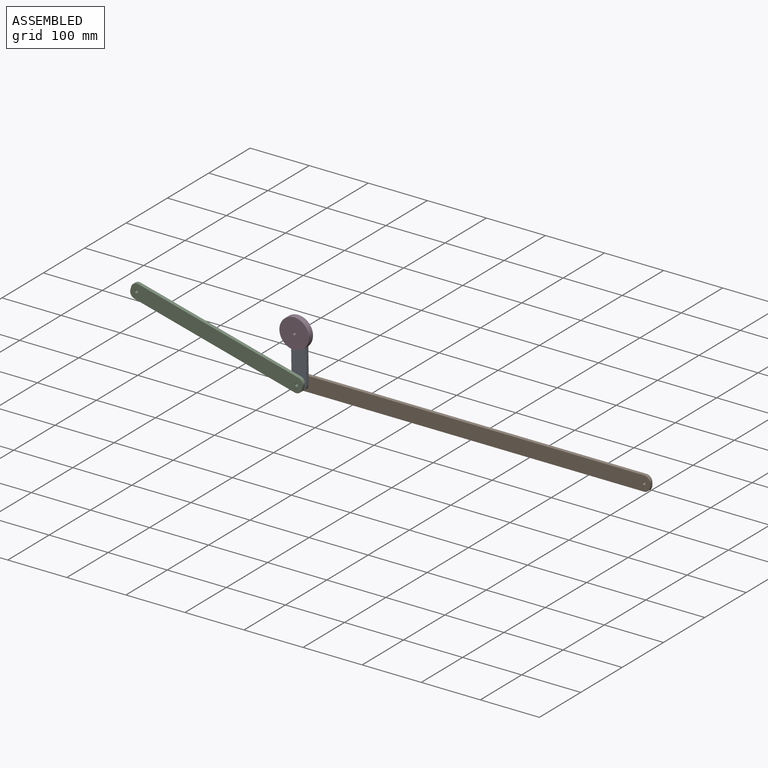
[diagram: assembled view]
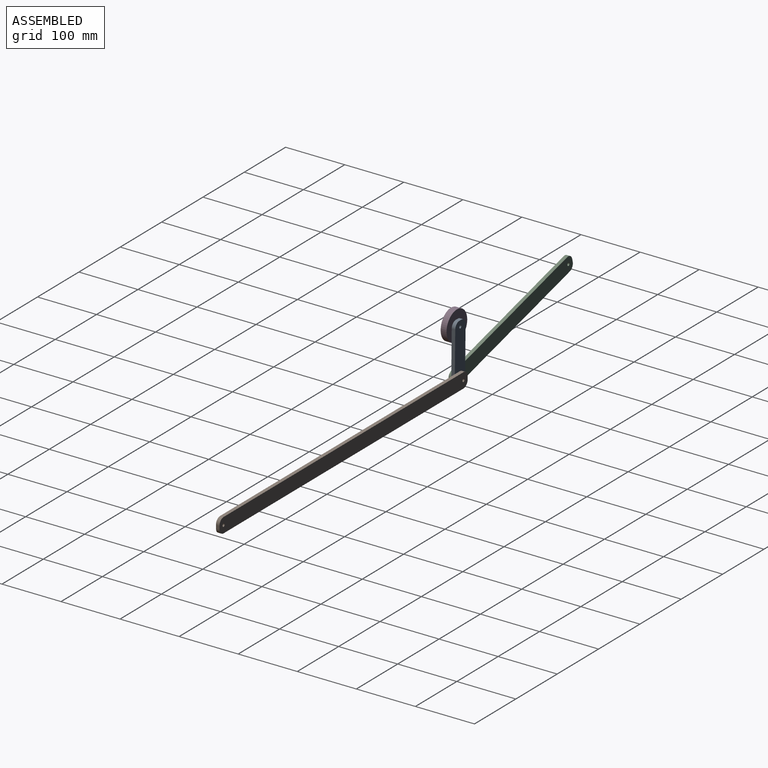
[diagram: assembled view, second angle]
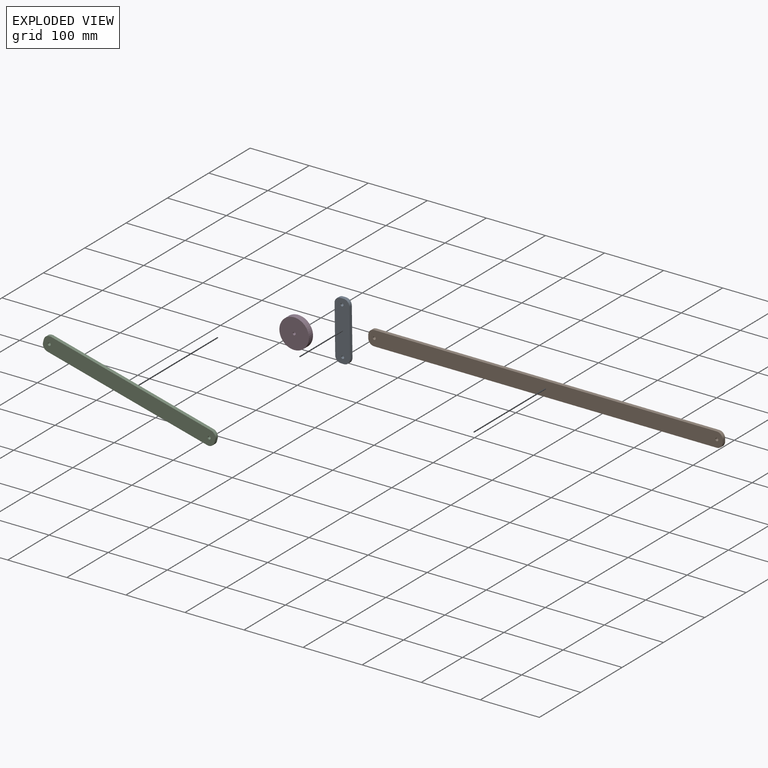
[diagram: exploded view]
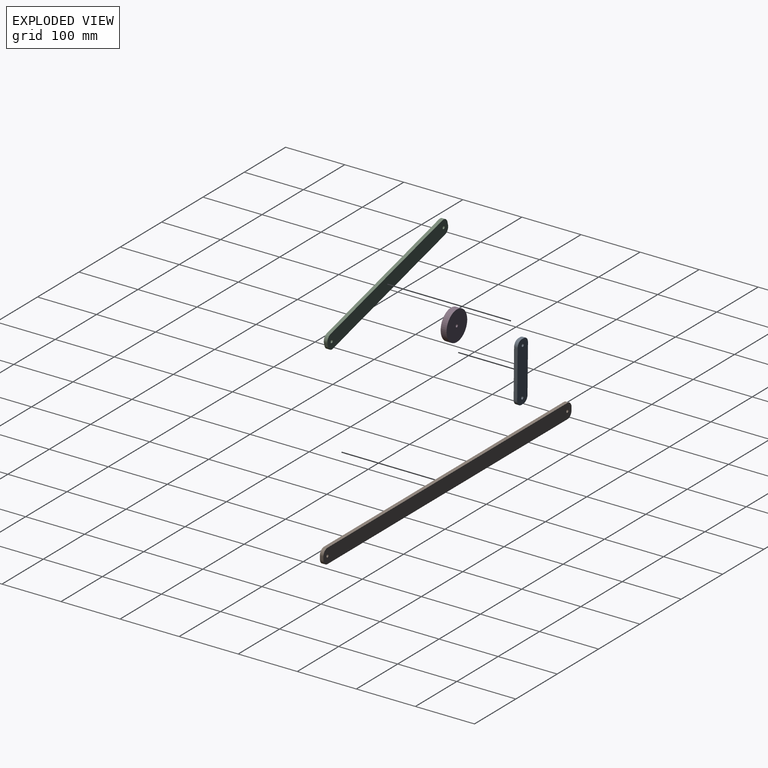
[diagram: exploded view, second angle]
ASSEMBLY  parts=4 mates=6
PART A: 12 faces, bbox 100x6x25 mm
  f0: plane 6x5mm, normal (1,0,0), area 30mm2, adj f4,f5,f6,f9
  f1: plane 80x6mm, normal (0,0,1), area 480mm2, adj f4,f5,f6,f7
  f2: plane 6x5mm, normal (-1,0,0), area 30mm2, adj f4,f5,f7,f8
  f3: plane 80x6mm, normal (0,0,-1), area 480mm2, adj f4,f5,f8,f9
  f4: plane 100x25mm, normal (0,-1,0), area 2374.9mm2, adj f0,f1,f2,f3,f6,f7,f8,f9
  f5: plane 100x25mm, normal (0,1,0), area 2374.9mm2, adj f0,f1,f2,f3,f6,f7,f8,f9
  f6: cylinder r=10mm len=10mm, axis (0,-1,0), area 94.2mm2, adj f0,f1,f4,f5
  f7: cylinder r=10mm len=10mm, axis (0,1,0), area 94.2mm2, adj f1,f2,f4,f5
  f8: cylinder r=10mm len=10mm, axis (0,-1,0), area 94.2mm2, adj f2,f3,f4,f5
  f9: cylinder r=10mm len=10mm, axis (0,1,0), area 94.2mm2, adj f0,f3,f4,f5
  f10: cylinder r=2.5mm len=6mm, axis (0,-1,0), area 94.2mm2, adj f4,f5
  f11: cylinder r=2.5mm len=6mm, axis (0,-1,0), area 94.2mm2, adj f4,f5
PART B: 12 faces, bbox 600x6x25 mm
  f0: plane 6x5mm, normal (1,0,0), area 30mm2, adj f4,f5,f6,f9
  f1: plane 580x6mm, normal (0,0,1), area 3480mm2, adj f4,f5,f6,f7
  f2: plane 6x5mm, normal (-1,0,0), area 30mm2, adj f4,f5,f7,f8
  f3: plane 580x6mm, normal (0,0,-1), area 3480mm2, adj f4,f5,f8,f9
  f4: plane 600x25mm, normal (0,-1,0), area 14874.9mm2, adj f0,f1,f2,f3,f6,f7,f8,f9
  f5: plane 600x25mm, normal (0,1,0), area 14874.9mm2, adj f0,f1,f2,f3,f6,f7,f8,f9
  f6: cylinder r=10mm len=10mm, axis (0,-1,0), area 94.2mm2, adj f0,f1,f4,f5
  f7: cylinder r=10mm len=10mm, axis (0,1,0), area 94.2mm2, adj f1,f2,f4,f5
  f8: cylinder r=10mm len=10mm, axis (0,-1,0), area 94.2mm2, adj f2,f3,f4,f5
  f9: cylinder r=10mm len=10mm, axis (0,1,0), area 94.2mm2, adj f0,f3,f4,f5
  f10: cylinder r=2.5mm len=6mm, axis (0,-1,0), area 94.2mm2, adj f4,f5
  f11: cylinder r=2.5mm len=6mm, axis (0,-1,0), area 94.2mm2, adj f4,f5
PART C: 12 faces, bbox 300x6x25 mm
  f0: plane 6x5mm, normal (1,0,0), area 30mm2, adj f4,f5,f6,f9
  f1: plane 280x6mm, normal (0,0,1), area 1680mm2, adj f4,f5,f6,f7
  f2: plane 6x5mm, normal (-1,0,0), area 30mm2, adj f4,f5,f7,f8
  f3: plane 280x6mm, normal (0,0,-1), area 1680mm2, adj f4,f5,f8,f9
  f4: plane 300x25mm, normal (0,-1,0), area 7374.9mm2, adj f0,f1,f2,f3,f6,f7,f8,f9
  f5: plane 300x25mm, normal (0,1,0), area 7374.9mm2, adj f0,f1,f2,f3,f6,f7,f8,f9
  f6: cylinder r=10mm len=10mm, axis (0,-1,0), area 94.2mm2, adj f0,f1,f4,f5
  f7: cylinder r=10mm len=10mm, axis (0,1,0), area 94.2mm2, adj f1,f2,f4,f5
  f8: cylinder r=10mm len=10mm, axis (0,-1,0), area 94.2mm2, adj f2,f3,f4,f5
  f9: cylinder r=10mm len=10mm, axis (0,1,0), area 94.2mm2, adj f0,f3,f4,f5
  f10: cylinder r=2.5mm len=6mm, axis (0,-1,0), area 94.2mm2, adj f4,f5
  f11: cylinder r=2.5mm len=6mm, axis (0,-1,0), area 94.2mm2, adj f4,f5
PART D: 4 faces, bbox 50x10x50 mm
  f0: cylinder r=2.5mm len=10mm, axis (0,-1,0), area 157.1mm2, adj f2,f3
  f1: cylinder r=25mm len=50mm, axis (0,-1,0), area 1570.8mm2, adj f2,f3
  f2: plane 50x50mm, normal (0,1,0), area 1943.9mm2, adj f0,f1
  f3: plane 50x50mm, normal (0,-1,0), area 1943.9mm2, adj f0,f1
PLACE A rot(axis=(0,-1,0),90.8deg) t=(-70.14,-33.4,37.06)mm
PLACE B rot(axis=(1,0,0),180deg) t=(220.42,-33.4,-2.94)mm fixed
PLACE C rot(axis=(0,1,0),14.7deg) t=(-205.03,-39.4,32.48)mm
PLACE D rot(axis=(0,-1,0),0.8deg) t=(23.44,-49.4,-195.45)mm
MATE planar B.f5 <-> A.f5  axis (0,-1,0) through (220.42,-33.4,-2.94)mm
MATE planar D.f0 <-> A.f4  axis (0,1,0) through (-70.69,-39.4,77.06)mm
MATE cylindrical C.f11 <-> A.f10  axis (0,-1,0) through (-69.58,-45.4,-2.94)mm
MATE planar C.f5 <-> A.f4  axis (0,1,0) through (-205.03,-39.4,32.48)mm
MATE cylindrical D.f0 <-> A.f11  axis (0,1,0) through (-70.69,-39.4,77.06)mm
MATE cylindrical B.f10 <-> A.f10  axis (0,1,0) through (-69.58,-27.4,-2.94)mm
